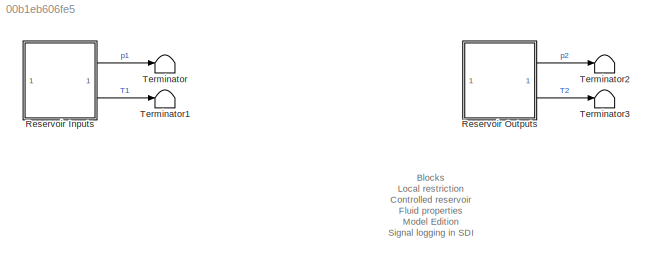
MODEL slx_00b1eb606fe5
KIND model
CONFIG AbsTol = 1e-3
CONFIG EnableMultiTasking = off
CONFIG FixedStep = auto
CONFIG MaxStep = auto
CONFIG MinStep = auto
CONFIG RelTol = 1e-3
CONFIG SampleTimeConstraint = Unconstrained
CONFIG SolverName = VariableStepAuto
CONFIG StartTime = 0.0
CONFIG StopTime = 10.0
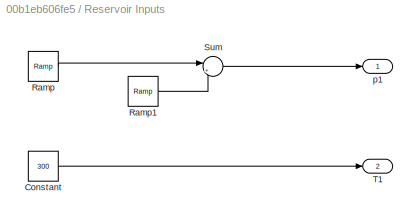
BLOCK [SubSystem] Reservoir Inputs
BLOCK [Constant] Reservoir Inputs/Constant
  Value = 300
BLOCK [Reference] Reservoir Inputs/Ramp  REF=simulink/Sources/Ramp
  SourceBlock = simulink/Sources/Ramp
  SourceType = Ramp
BLOCK [Reference] Reservoir Inputs/Ramp1  REF=simulink/Sources/Ramp
  SourceBlock = simulink/Sources/Ramp
  SourceType = Ramp
BLOCK [Sum] Reservoir Inputs/Sum
  Inputs = |++
BLOCK [Outport] Reservoir Inputs/T1
  Port = 2
BLOCK [Outport] Reservoir Inputs/p1
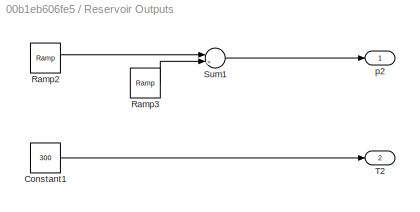
BLOCK [SubSystem] Reservoir Outputs
BLOCK [Constant] Reservoir Outputs/Constant1
  Value = 300
BLOCK [Reference] Reservoir Outputs/Ramp2  REF=simulink/Sources/Ramp
  SourceBlock = simulink/Sources/Ramp
  SourceType = Ramp
BLOCK [Reference] Reservoir Outputs/Ramp3  REF=simulink/Sources/Ramp
  SourceBlock = simulink/Sources/Ramp
  SourceType = Ramp
BLOCK [Sum] Reservoir Outputs/Sum1
  Inputs = |++
BLOCK [Outport] Reservoir Outputs/T2
  Port = 2
BLOCK [Outport] Reservoir Outputs/p2
BLOCK [Terminator] Terminator
BLOCK [Terminator] Terminator1
BLOCK [Terminator] Terminator2
BLOCK [Terminator] Terminator3
ANNOTATION (root): Blocks Local restriction Controlled reservoir Fluid properties Model Edition Signal logging in SDI Get block from canvas Libraries Simulink / Simscape interface Required blocks for Simscape Simulation Solver Profiler Analysis Simscape results explorer Analysis in SDI Results in workspace
LINE Reservoir Inputs/Constant:1 -> Reservoir Inputs/T1:1
LINE Reservoir Inputs/Ramp1:1 -> Reservoir Inputs/Sum:2
LINE Reservoir Inputs/Ramp:1 -> Reservoir Inputs/Sum:1
LINE Reservoir Inputs/Sum:1 -> Reservoir Inputs/p1:1
LINE Reservoir Inputs:1 -> Terminator:1
LINE Reservoir Inputs:2 -> Terminator1:1
LINE Reservoir Outputs/Constant1:1 -> Reservoir Outputs/T2:1
LINE Reservoir Outputs/Ramp2:1 -> Reservoir Outputs/Sum1:1
LINE Reservoir Outputs/Ramp3:1 -> Reservoir Outputs/Sum1:2
LINE Reservoir Outputs/Sum1:1 -> Reservoir Outputs/p2:1
LINE Reservoir Outputs:1 -> Terminator2:1
LINE Reservoir Outputs:2 -> Terminator3:1
